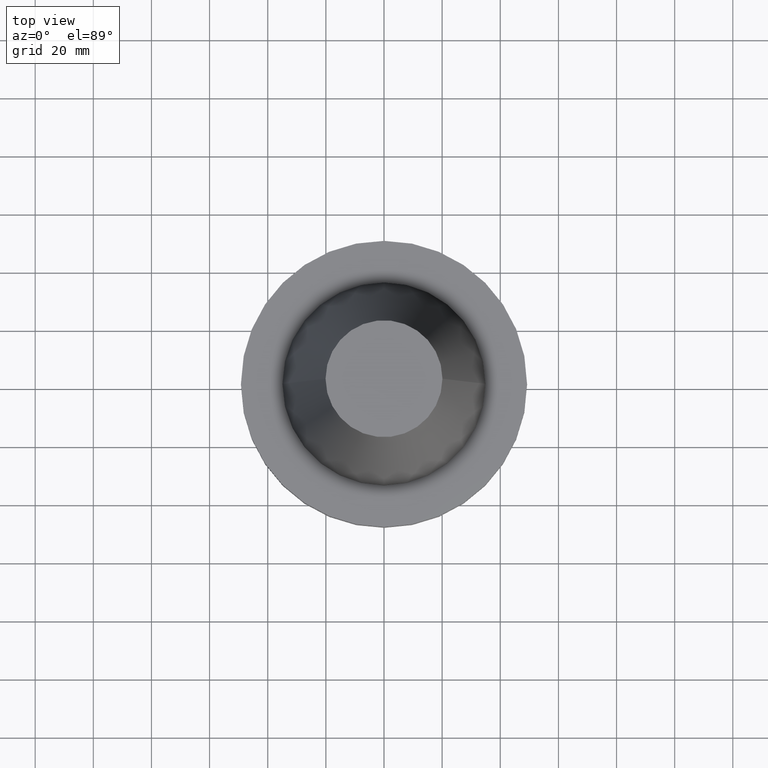
[diagram: clean part render]
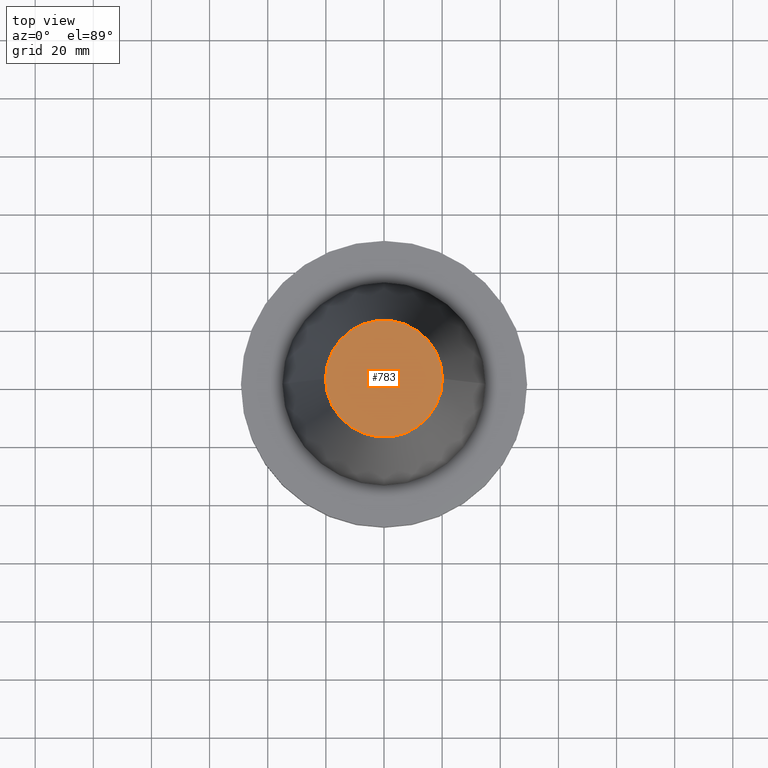
[diagram: same view with one face highlighted and labeled with its STEP entity id]
A machine part, top view. The second image highlights one B-rep face of the part: STEP entity #783.
In plain terms, the highlighted planar face has unit normal (0, 0, -1).
Its self-contained STEP definition (entity closure, byte-faithful):
#21 = CARTESIAN_POINT ( 'NONE',  ( 0.000000000000000000, 20.10819343178871321, 101.5999999999999943 ) ) ;
#47 = CIRCLE ( 'NONE', #231, 20.10819343178871321 ) ;
#56 = ORIENTED_EDGE ( 'NONE', *, *, #947, .T. ) ;
#70 = EDGE_CURVE ( 'NONE', #674, #208, #47, .T. ) ;
#84 = FACE_OUTER_BOUND ( 'NONE', #974, .T. ) ;
#138 = CARTESIAN_POINT ( 'NONE',  ( -20.10819343178871321, 0.000000000000000000, 101.5999999999999801 ) ) ;
#174 = PLANE ( 'NONE',  #332 ) ;
#192 = DIRECTION ( 'NONE',  ( 1.000000000000000000, 0.000000000000000000, 0.000000000000000000 ) ) ;
#208 = VERTEX_POINT ( 'NONE', #138 ) ;
#231 = AXIS2_PLACEMENT_3D ( 'NONE', #518, #289, #192 ) ;
#240 = DIRECTION ( 'NONE',  ( -1.000000000000000000, 0.000000000000000000, -0.000000000000000000 ) ) ;
#288 = CARTESIAN_POINT ( 'NONE',  ( 20.10819343178871321, 3.369811209154858606E-15, 101.5999999999999801 ) ) ;
#289 = DIRECTION ( 'NONE',  ( -0.000000000000000000, -0.000000000000000000, 1.000000000000000000 ) ) ;
#332 = AXIS2_PLACEMENT_3D ( 'NONE', #21, #879, #240 ) ;
#342 = DIRECTION ( 'NONE',  ( 1.000000000000000000, 0.000000000000000000, 0.000000000000000000 ) ) ;
#366 = AXIS2_PLACEMENT_3D ( 'NONE', #520, #898, #342 ) ;
#518 = CARTESIAN_POINT ( 'NONE',  ( 0.000000000000000000, 0.000000000000000000, 101.5999999999999801 ) ) ;
#520 = CARTESIAN_POINT ( 'NONE',  ( 0.000000000000000000, 0.000000000000000000, 101.5999999999999801 ) ) ;
#585 = ORIENTED_EDGE ( 'NONE', *, *, #70, .T. ) ;
#674 = VERTEX_POINT ( 'NONE', #288 ) ;
#783 = ADVANCED_FACE ( 'NONE', ( #84 ), #174, .F. ) ;
#803 = CIRCLE ( 'NONE', #366, 20.10819343178871321 ) ;
#879 = DIRECTION ( 'NONE',  ( 0.000000000000000000, 0.000000000000000000, -1.000000000000000000 ) ) ;
#898 = DIRECTION ( 'NONE',  ( -0.000000000000000000, -0.000000000000000000, 1.000000000000000000 ) ) ;
#947 = EDGE_CURVE ( 'NONE', #208, #674, #803, .T. ) ;
#974 = EDGE_LOOP ( 'NONE', ( #56, #585 ) ) ;